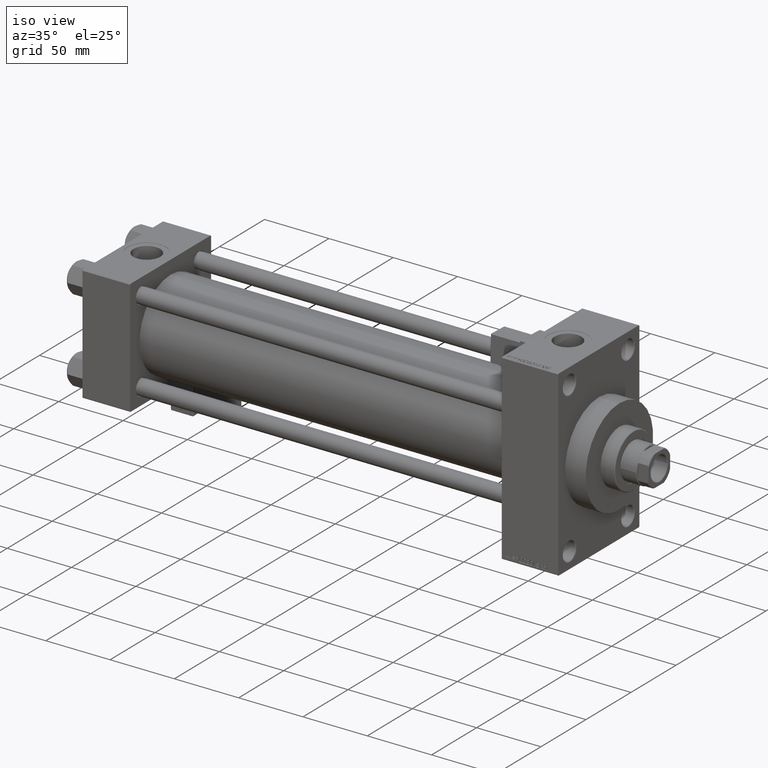
[diagram: clean part render]
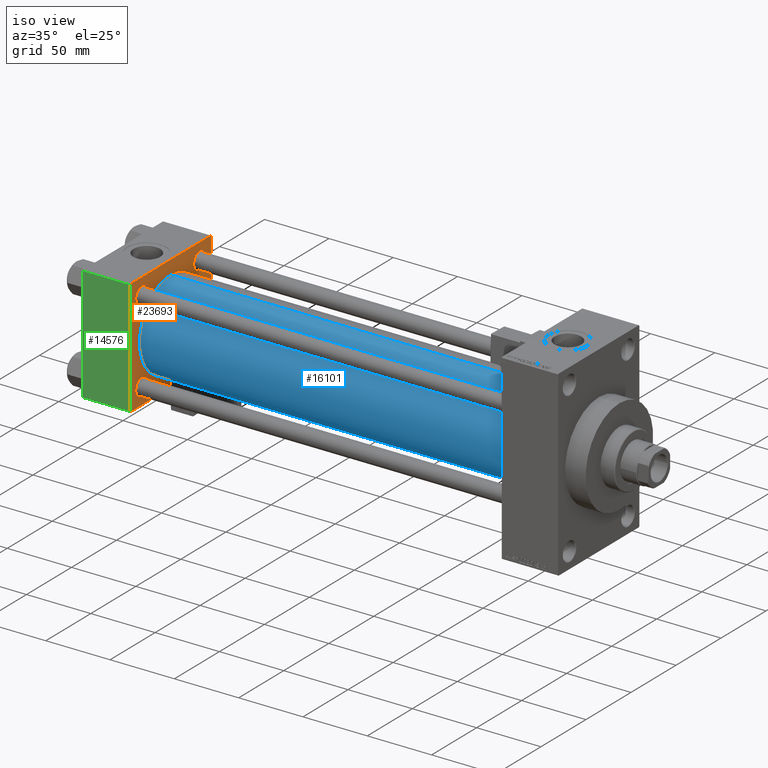
[diagram: same view with three faces highlighted in distinct colors, each labeled with its STEP entity id]
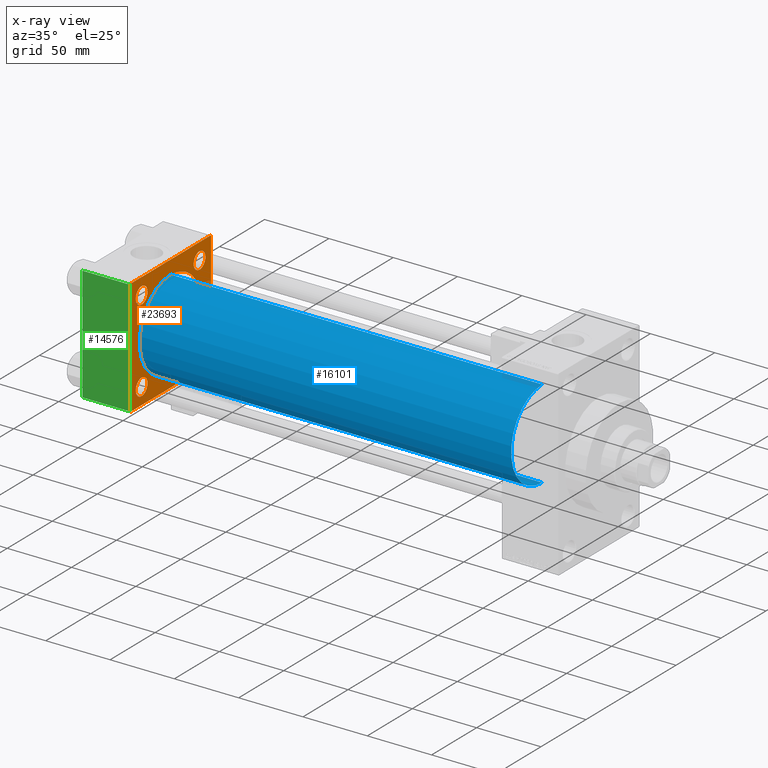
[diagram: x-ray of the same camera — body ghosted, the three highlighted faces saturated]
A machine part, iso view with three faces highlighted in distinct colors.
The next image is the same camera in x-ray (body ghosted, the three faces saturated) — at least one of them is partly hidden behind the body in this view.
Their STEP definitions:

[orange] entity #23693 — the highlighted planar face has unit normal (-1, 0, 0).
#691 = EDGE_LOOP ( 'NONE', ( #4268, #13103 ) ) ;
#812 = CIRCLE ( 'NONE', #22469, 34.50000000000000000 ) ;
#846 = LINE ( 'NONE', #21151, #26527 ) ;
#1030 = DIRECTION ( 'NONE',  ( 0.000000000000000000, 0.000000000000000000, 1.000000000000000000 ) ) ;
#1168 = VECTOR ( 'NONE', #44832, 1000.000000000000000 ) ;
#1524 = AXIS2_PLACEMENT_3D ( 'NONE', #42850, #35051, #35309 ) ;
#1540 = CARTESIAN_POINT ( 'NONE',  ( 37.00000000000000000, 32.14999999999999147, 32.15000000000000568 ) ) ;
#1883 = VECTOR ( 'NONE', #48368, 1000.000000000000114 ) ;
#1998 = CARTESIAN_POINT ( 'NONE',  ( 37.00000000000000000, -45.00000000000000000, -44.49999999999995737 ) ) ;
#2094 = EDGE_CURVE ( 'NONE', #29455, #16679, #18464, .T. ) ;
#2557 = VERTEX_POINT ( 'NONE', #48748 ) ;
#2651 = LINE ( 'NONE', #7817, #46558 ) ;
#2717 = EDGE_LOOP ( 'NONE', ( #36933, #48188 ) ) ;
#2844 = EDGE_CURVE ( 'NONE', #12648, #15254, #29971, .T. ) ;
#3176 = CARTESIAN_POINT ( 'NONE',  ( 37.00000000000000000, 32.14999999999999147, 32.15000000000000568 ) ) ;
#3290 = PLANE ( 'NONE',  #1524 ) ;
#3296 = CIRCLE ( 'NONE', #44007, 6.500000000000005329 ) ;
#3374 = AXIS2_PLACEMENT_3D ( 'NONE', #44755, #13513, #1030 ) ;
#3583 = CARTESIAN_POINT ( 'NONE',  ( 37.00000000000000000, -32.14999999999997726, 25.65000000000000568 ) ) ;
#3617 = DIRECTION ( 'NONE',  ( 0.000000000000000000, 0.000000000000000000, 1.000000000000000000 ) ) ;
#3638 = CIRCLE ( 'NONE', #31922, 6.500000000000005329 ) ;
#3794 = CARTESIAN_POINT ( 'NONE',  ( 37.00000000000000000, 44.99999999999998579, -44.49999999999995737 ) ) ;
#3873 = DIRECTION ( 'NONE',  ( -0.000000000000000000, 0.7071067811865474617, 0.7071067811865474617 ) ) ;
#4268 = ORIENTED_EDGE ( 'NONE', *, *, #6005, .T. ) ;
#4401 = CIRCLE ( 'NONE', #13546, 6.499999999999950262 ) ;
#4532 = ORIENTED_EDGE ( 'NONE', *, *, #45656, .T. ) ;
#5017 = CARTESIAN_POINT ( 'NONE',  ( 36.99999999999997868, -2.602085213965210642E-15, 34.50000000000000000 ) ) ;
#6005 = EDGE_CURVE ( 'NONE', #28952, #48900, #6065, .T. ) ;
#6065 = CIRCLE ( 'NONE', #10239, 6.499999999999950262 ) ;
#6245 = CARTESIAN_POINT ( 'NONE',  ( 37.00000000000000000, -32.14999999999997726, 38.65000000000001990 ) ) ;
#6640 = ORIENTED_EDGE ( 'NONE', *, *, #30576, .F. ) ;
#6748 = DIRECTION ( 'NONE',  ( -1.000000000000000000, 0.000000000000000000, -0.000000000000000000 ) ) ;
#6925 = FACE_BOUND ( 'NONE', #2717, .T. ) ;
#6950 = CARTESIAN_POINT ( 'NONE',  ( 37.00000000000000000, 44.99999999999998579, 45.00000000000001421 ) ) ;
#7094 = CIRCLE ( 'NONE', #48644, 6.499999999999950262 ) ;
#7185 = FACE_OUTER_BOUND ( 'NONE', #23867, .T. ) ;
#7440 = CIRCLE ( 'NONE', #36532, 6.499999999999950262 ) ;
#7817 = CARTESIAN_POINT ( 'NONE',  ( 37.00000000000000000, 44.99999999999998579, -44.99999999999998579 ) ) ;
#9275 = VERTEX_POINT ( 'NONE', #9481 ) ;
#9481 = CARTESIAN_POINT ( 'NONE',  ( 37.00000000000000000, -32.14999999999997726, -25.65000000000000568 ) ) ;
#9625 = CARTESIAN_POINT ( 'NONE',  ( 37.00000000000000000, 32.14999999999999147, 38.64999999999995595 ) ) ;
#9784 = CARTESIAN_POINT ( 'NONE',  ( 37.00000000000000000, 44.49999999999998579, 45.00000000000001421 ) ) ;
#9872 = CARTESIAN_POINT ( 'NONE',  ( 37.00000000000000000, -32.14999999999997726, -32.15000000000001279 ) ) ;
#10239 = AXIS2_PLACEMENT_3D ( 'NONE', #37472, #17710, #33577 ) ;
#10445 = EDGE_CURVE ( 'NONE', #30135, #44088, #25592, .T. ) ;
#10695 = EDGE_LOOP ( 'NONE', ( #38994, #6640 ) ) ;
#10818 = VERTEX_POINT ( 'NONE', #9625 ) ;
#11039 = DIRECTION ( 'NONE',  ( 1.000000000000000000, -0.000000000000000000, 0.000000000000000000 ) ) ;
#11937 = CARTESIAN_POINT ( 'NONE',  ( 37.00000000000000000, 44.99999999999998579, -44.49999999999998579 ) ) ;
#12648 = VERTEX_POINT ( 'NONE', #3583 ) ;
#12736 = CARTESIAN_POINT ( 'NONE',  ( 37.00000000000000000, -32.14999999999997726, -38.65000000000001990 ) ) ;
#13103 = ORIENTED_EDGE ( 'NONE', *, *, #30703, .T. ) ;
#13155 = ORIENTED_EDGE ( 'NONE', *, *, #48146, .T. ) ;
#13260 = CIRCLE ( 'NONE', #37337, 34.50000000000000000 ) ;
#13410 = ORIENTED_EDGE ( 'NONE', *, *, #35241, .F. ) ;
#13513 = DIRECTION ( 'NONE',  ( -1.000000000000000000, 0.000000000000000000, -0.000000000000000000 ) ) ;
#13546 = AXIS2_PLACEMENT_3D ( 'NONE', #1540, #17953, #29156 ) ;
#13621 = VERTEX_POINT ( 'NONE', #40783 ) ;
#14095 = CARTESIAN_POINT ( 'NONE',  ( 37.00000000000000000, -44.49999999999995737, -45.00000000000000000 ) ) ;
#14751 = DIRECTION ( 'NONE',  ( 0.000000000000000000, -0.7071067811865474617, 0.7071067811865474617 ) ) ;
#14794 = VERTEX_POINT ( 'NONE', #3794 ) ;
#14880 = VECTOR ( 'NONE', #3873, 1000.000000000000114 ) ;
#15219 = VECTOR ( 'NONE', #14751, 1000.000000000000114 ) ;
#15254 = VERTEX_POINT ( 'NONE', #6245 ) ;
#16627 = CARTESIAN_POINT ( 'NONE',  ( 37.00000000000000000, -45.00000000000000711, 44.49999999999997158 ) ) ;
#16679 = VERTEX_POINT ( 'NONE', #14095 ) ;
#17340 = ORIENTED_EDGE ( 'NONE', *, *, #41348, .T. ) ;
#17710 = DIRECTION ( 'NONE',  ( -1.000000000000000000, 0.000000000000000000, -0.000000000000000000 ) ) ;
#17948 = DIRECTION ( 'NONE',  ( 0.000000000000000000, 0.7071067811865474617, -0.7071067811865474617 ) ) ;
#17953 = DIRECTION ( 'NONE',  ( -1.000000000000000000, 0.000000000000000000, -0.000000000000000000 ) ) ;
#18464 = LINE ( 'NONE', #21842, #24098 ) ;
#18478 = CARTESIAN_POINT ( 'NONE',  ( 37.00000000000000000, -32.14999999999997726, 32.15000000000001279 ) ) ;
#19068 = DIRECTION ( 'NONE',  ( -1.000000000000000000, 0.000000000000000000, -0.000000000000000000 ) ) ;
#20404 = CIRCLE ( 'NONE', #32032, 6.500000000000005329 ) ;
#20527 = EDGE_LOOP ( 'NONE', ( #35358, #4532 ) ) ;
#20722 = DIRECTION ( 'NONE',  ( 0.000000000000000000, 0.000000000000000000, 1.000000000000000000 ) ) ;
#21151 = CARTESIAN_POINT ( 'NONE',  ( 37.00000000000000000, -45.00000000000000711, 45.00000000000000000 ) ) ;
#21681 = CARTESIAN_POINT ( 'NONE',  ( 37.00000000000000000, 44.99999999999998579, 45.00000000000001421 ) ) ;
#21842 = CARTESIAN_POINT ( 'NONE',  ( 37.00000000000000000, -44.49999999999998579, -45.00000000000000000 ) ) ;
#22334 = VERTEX_POINT ( 'NONE', #12736 ) ;
#22469 = AXIS2_PLACEMENT_3D ( 'NONE', #41447, #45866, #26114 ) ;
#22831 = FACE_BOUND ( 'NONE', #10695, .T. ) ;
#23693 = ADVANCED_FACE ( 'NONE', ( #6925, #39200, #50674, #50928, #22831, #7185 ), #3290, .F. ) ;
#23867 = EDGE_LOOP ( 'NONE', ( #13410, #35754, #45893, #39170, #32542, #17340, #29911, #41344 ) ) ;
#24098 = VECTOR ( 'NONE', #17948, 1000.000000000000114 ) ;
#24205 = EDGE_CURVE ( 'NONE', #2557, #29455, #846, .T. ) ;
#25008 = DIRECTION ( 'NONE',  ( 0.000000000000000000, 0.000000000000000000, 1.000000000000000000 ) ) ;
#25592 = LINE ( 'NONE', #21681, #1168 ) ;
#25876 = EDGE_CURVE ( 'NONE', #9275, #22334, #3296, .T. ) ;
#26114 = DIRECTION ( 'NONE',  ( 0.000000000000000000, 0.000000000000000000, 1.000000000000000000 ) ) ;
#26527 = VECTOR ( 'NONE', #37521, 1000.000000000000000 ) ;
#26954 = DIRECTION ( 'NONE',  ( 0.000000000000000000, 0.000000000000000000, 1.000000000000000000 ) ) ;
#27022 = LINE ( 'NONE', #6950, #50054 ) ;
#28099 = LINE ( 'NONE', #11937, #14880 ) ;
#28535 = CARTESIAN_POINT ( 'NONE',  ( 37.00000000000000000, -32.14999999999997726, -32.15000000000001279 ) ) ;
#28952 = VERTEX_POINT ( 'NONE', #44430 ) ;
#29156 = DIRECTION ( 'NONE',  ( 0.000000000000000000, 0.000000000000000000, 1.000000000000000000 ) ) ;
#29455 = VERTEX_POINT ( 'NONE', #1998 ) ;
#29911 = ORIENTED_EDGE ( 'NONE', *, *, #24205, .T. ) ;
#29971 = CIRCLE ( 'NONE', #3374, 6.500000000000005329 ) ;
#30131 = DIRECTION ( 'NONE',  ( 0.000000000000000000, 0.000000000000000000, -1.000000000000000000 ) ) ;
#30135 = VERTEX_POINT ( 'NONE', #33500 ) ;
#30576 = EDGE_CURVE ( 'NONE', #42356, #30697, #13260, .T. ) ;
#30697 = VERTEX_POINT ( 'NONE', #5017 ) ;
#30703 = EDGE_CURVE ( 'NONE', #48900, #28952, #7440, .T. ) ;
#31474 = EDGE_CURVE ( 'NONE', #30697, #42356, #812, .T. ) ;
#31922 = AXIS2_PLACEMENT_3D ( 'NONE', #18478, #6748, #3617 ) ;
#31991 = EDGE_CURVE ( 'NONE', #13621, #14794, #28099, .T. ) ;
#32032 = AXIS2_PLACEMENT_3D ( 'NONE', #9872, #37729, #25008 ) ;
#32348 = CARTESIAN_POINT ( 'NONE',  ( 37.00000000000000000, 32.14999999999999147, 25.65000000000005542 ) ) ;
#32542 = ORIENTED_EDGE ( 'NONE', *, *, #10445, .T. ) ;
#33381 = CARTESIAN_POINT ( 'NONE',  ( 37.00000000000000000, 32.14999999999999147, -32.15000000000000568 ) ) ;
#33483 = LINE ( 'NONE', #9784, #15219 ) ;
#33500 = CARTESIAN_POINT ( 'NONE',  ( 37.00000000000000000, 44.49999999999998579, 45.00000000000001421 ) ) ;
#33577 = DIRECTION ( 'NONE',  ( 0.000000000000000000, 0.000000000000000000, 1.000000000000000000 ) ) ;
#33915 = CARTESIAN_POINT ( 'NONE',  ( 37.00000000000000000, 32.14999999999999147, -25.65000000000005542 ) ) ;
#35051 = DIRECTION ( 'NONE',  ( -1.000000000000000000, 0.000000000000000000, -0.000000000000000000 ) ) ;
#35241 = EDGE_CURVE ( 'NONE', #13621, #16679, #2651, .T. ) ;
#35309 = DIRECTION ( 'NONE',  ( -0.000000000000000000, 0.000000000000000000, 1.000000000000000000 ) ) ;
#35358 = ORIENTED_EDGE ( 'NONE', *, *, #2844, .T. ) ;
#35754 = ORIENTED_EDGE ( 'NONE', *, *, #31991, .T. ) ;
#36392 = LINE ( 'NONE', #16627, #1883 ) ;
#36532 = AXIS2_PLACEMENT_3D ( 'NONE', #33381, #37030, #49261 ) ;
#36933 = ORIENTED_EDGE ( 'NONE', *, *, #48339, .T. ) ;
#37030 = DIRECTION ( 'NONE',  ( -1.000000000000000000, 0.000000000000000000, -0.000000000000000000 ) ) ;
#37337 = AXIS2_PLACEMENT_3D ( 'NONE', #50629, #11039, #26954 ) ;
#37472 = CARTESIAN_POINT ( 'NONE',  ( 37.00000000000000000, 32.14999999999999147, -32.15000000000000568 ) ) ;
#37521 = DIRECTION ( 'NONE',  ( 0.000000000000000000, 7.709882115452476934E-17, -1.000000000000000000 ) ) ;
#37729 = DIRECTION ( 'NONE',  ( -1.000000000000000000, 0.000000000000000000, -0.000000000000000000 ) ) ;
#37928 = CARTESIAN_POINT ( 'NONE',  ( 36.99999999999997868, 1.622946243093158675E-15, -34.50000000000000000 ) ) ;
#38867 = EDGE_CURVE ( 'NONE', #47985, #14794, #27022, .T. ) ;
#38994 = ORIENTED_EDGE ( 'NONE', *, *, #31474, .F. ) ;
#39170 = ORIENTED_EDGE ( 'NONE', *, *, #43927, .T. ) ;
#39200 = FACE_BOUND ( 'NONE', #691, .T. ) ;
#39325 = DIRECTION ( 'NONE',  ( 0.000000000000000000, -1.000000000000000000, -1.541976423090495633E-16 ) ) ;
#40492 = DIRECTION ( 'NONE',  ( -1.000000000000000000, 0.000000000000000000, -0.000000000000000000 ) ) ;
#40516 = EDGE_LOOP ( 'NONE', ( #46034, #13155 ) ) ;
#40783 = CARTESIAN_POINT ( 'NONE',  ( 37.00000000000000000, 44.49999999999998579, -44.99999999999998579 ) ) ;
#41344 = ORIENTED_EDGE ( 'NONE', *, *, #2094, .T. ) ;
#41348 = EDGE_CURVE ( 'NONE', #44088, #2557, #36392, .T. ) ;
#41447 = CARTESIAN_POINT ( 'NONE',  ( 36.99999999999997868, -2.602085213965210642E-15, 0.000000000000000000 ) ) ;
#42356 = VERTEX_POINT ( 'NONE', #37928 ) ;
#42850 = CARTESIAN_POINT ( 'NONE',  ( 37.00000000000000000, 0.000000000000000000, 0.000000000000000000 ) ) ;
#43522 = VERTEX_POINT ( 'NONE', #32348 ) ;
#43927 = EDGE_CURVE ( 'NONE', #47985, #30135, #33483, .T. ) ;
#44007 = AXIS2_PLACEMENT_3D ( 'NONE', #28535, #40492, #20722 ) ;
#44069 = CARTESIAN_POINT ( 'NONE',  ( 37.00000000000000000, 44.99999999999998579, 44.50000000000001421 ) ) ;
#44088 = VERTEX_POINT ( 'NONE', #48288 ) ;
#44430 = CARTESIAN_POINT ( 'NONE',  ( 37.00000000000000000, 32.14999999999999147, -38.64999999999995595 ) ) ;
#44616 = EDGE_CURVE ( 'NONE', #43522, #10818, #4401, .T. ) ;
#44755 = CARTESIAN_POINT ( 'NONE',  ( 37.00000000000000000, -32.14999999999997726, 32.15000000000001279 ) ) ;
#44832 = DIRECTION ( 'NONE',  ( 0.000000000000000000, -1.000000000000000000, -1.541976423090495387E-16 ) ) ;
#45656 = EDGE_CURVE ( 'NONE', #15254, #12648, #3638, .T. ) ;
#45866 = DIRECTION ( 'NONE',  ( 1.000000000000000000, -0.000000000000000000, 0.000000000000000000 ) ) ;
#45893 = ORIENTED_EDGE ( 'NONE', *, *, #38867, .F. ) ;
#46034 = ORIENTED_EDGE ( 'NONE', *, *, #44616, .T. ) ;
#46114 = DIRECTION ( 'NONE',  ( 0.000000000000000000, 0.000000000000000000, 1.000000000000000000 ) ) ;
#46558 = VECTOR ( 'NONE', #39325, 1000.000000000000000 ) ;
#47985 = VERTEX_POINT ( 'NONE', #44069 ) ;
#48146 = EDGE_CURVE ( 'NONE', #10818, #43522, #7094, .T. ) ;
#48188 = ORIENTED_EDGE ( 'NONE', *, *, #25876, .T. ) ;
#48288 = CARTESIAN_POINT ( 'NONE',  ( 37.00000000000000000, -44.49999999999995737, 45.00000000000000000 ) ) ;
#48339 = EDGE_CURVE ( 'NONE', #22334, #9275, #20404, .T. ) ;
#48368 = DIRECTION ( 'NONE',  ( -0.000000000000000000, -0.7071067811865425767, -0.7071067811865524577 ) ) ;
#48644 = AXIS2_PLACEMENT_3D ( 'NONE', #3176, #19068, #46114 ) ;
#48748 = CARTESIAN_POINT ( 'NONE',  ( 37.00000000000000000, -45.00000000000000711, 44.49999999999997158 ) ) ;
#48900 = VERTEX_POINT ( 'NONE', #33915 ) ;
#49261 = DIRECTION ( 'NONE',  ( 0.000000000000000000, 0.000000000000000000, 1.000000000000000000 ) ) ;
#50054 = VECTOR ( 'NONE', #30131, 1000.000000000000000 ) ;
#50629 = CARTESIAN_POINT ( 'NONE',  ( 36.99999999999997868, -2.602085213965210642E-15, 0.000000000000000000 ) ) ;
#50674 = FACE_BOUND ( 'NONE', #20527, .T. ) ;
#50928 = FACE_BOUND ( 'NONE', #40516, .T. ) ;

[blue] entity #16101 — the highlighted cylindrical surface (partial cylindrical patch) has radius 34.5 mm, axis along (-1, -0, -0).
#725 = ORIENTED_EDGE ( 'NONE', *, *, #31474, .T. ) ;
#812 = CIRCLE ( 'NONE', #22469, 34.50000000000000000 ) ;
#868 = CARTESIAN_POINT ( 'NONE',  ( 325.9999999999999432, -2.602085213965210642E-15, 0.000000000000000000 ) ) ;
#2464 = CARTESIAN_POINT ( 'NONE',  ( 325.9999999999999432, 1.622946243093158675E-15, -34.50000000000000000 ) ) ;
#5017 = CARTESIAN_POINT ( 'NONE',  ( 36.99999999999997868, -2.602085213965210642E-15, 34.50000000000000000 ) ) ;
#7507 = CARTESIAN_POINT ( 'NONE',  ( 325.9999999999999432, -2.602085213965210642E-15, 34.50000000000000000 ) ) ;
#9483 = LINE ( 'NONE', #2464, #28199 ) ;
#9878 = VERTEX_POINT ( 'NONE', #42081 ) ;
#11180 = ORIENTED_EDGE ( 'NONE', *, *, #19205, .T. ) ;
#11253 = EDGE_CURVE ( 'NONE', #9878, #49406, #15359, .T. ) ;
#12911 = EDGE_LOOP ( 'NONE', ( #44151, #19085, #11180, #725 ) ) ;
#15359 = CIRCLE ( 'NONE', #17838, 34.50000000000000000 ) ;
#16101 = ADVANCED_FACE ( 'NONE', ( #50792 ), #31013, .T. ) ;
#16508 = DIRECTION ( 'NONE',  ( 0.000000000000000000, 0.000000000000000000, -1.000000000000000000 ) ) ;
#17838 = AXIS2_PLACEMENT_3D ( 'NONE', #868, #19210, #16508 ) ;
#19085 = ORIENTED_EDGE ( 'NONE', *, *, #11253, .F. ) ;
#19205 = EDGE_CURVE ( 'NONE', #9878, #30697, #31476, .T. ) ;
#19210 = DIRECTION ( 'NONE',  ( 1.000000000000000000, 0.000000000000000000, 0.000000000000000000 ) ) ;
#22469 = AXIS2_PLACEMENT_3D ( 'NONE', #41447, #45866, #26114 ) ;
#23195 = DIRECTION ( 'NONE',  ( 0.000000000000000000, 0.000000000000000000, 1.000000000000000000 ) ) ;
#23401 = DIRECTION ( 'NONE',  ( -1.000000000000000000, -0.000000000000000000, -0.000000000000000000 ) ) ;
#24828 = EDGE_CURVE ( 'NONE', #49406, #42356, #9483, .T. ) ;
#25387 = DIRECTION ( 'NONE',  ( -1.000000000000000000, -0.000000000000000000, -0.000000000000000000 ) ) ;
#25635 = VECTOR ( 'NONE', #23401, 1000.000000000000000 ) ;
#26114 = DIRECTION ( 'NONE',  ( 0.000000000000000000, 0.000000000000000000, 1.000000000000000000 ) ) ;
#27116 = CARTESIAN_POINT ( 'NONE',  ( 325.9999999999999432, -2.602085213965210642E-15, 0.000000000000000000 ) ) ;
#28199 = VECTOR ( 'NONE', #25387, 1000.000000000000000 ) ;
#30697 = VERTEX_POINT ( 'NONE', #5017 ) ;
#31013 = CYLINDRICAL_SURFACE ( 'NONE', #35448, 34.50000000000000000 ) ;
#31474 = EDGE_CURVE ( 'NONE', #30697, #42356, #812, .T. ) ;
#31476 = LINE ( 'NONE', #7507, #25635 ) ;
#35448 = AXIS2_PLACEMENT_3D ( 'NONE', #27116, #42962, #23195 ) ;
#37928 = CARTESIAN_POINT ( 'NONE',  ( 36.99999999999997868, 1.622946243093158675E-15, -34.50000000000000000 ) ) ;
#41447 = CARTESIAN_POINT ( 'NONE',  ( 36.99999999999997868, -2.602085213965210642E-15, 0.000000000000000000 ) ) ;
#42081 = CARTESIAN_POINT ( 'NONE',  ( 325.9999999999999432, -2.602085213965210642E-15, 34.50000000000000000 ) ) ;
#42356 = VERTEX_POINT ( 'NONE', #37928 ) ;
#42824 = CARTESIAN_POINT ( 'NONE',  ( 325.9999999999999432, 1.622946243093158675E-15, -34.50000000000000000 ) ) ;
#42962 = DIRECTION ( 'NONE',  ( -1.000000000000000000, -0.000000000000000000, -0.000000000000000000 ) ) ;
#44151 = ORIENTED_EDGE ( 'NONE', *, *, #24828, .F. ) ;
#45866 = DIRECTION ( 'NONE',  ( 1.000000000000000000, -0.000000000000000000, 0.000000000000000000 ) ) ;
#49406 = VERTEX_POINT ( 'NONE', #42824 ) ;
#50792 = FACE_OUTER_BOUND ( 'NONE', #12911, .T. ) ;

[green] entity #14576 — the highlighted planar face has unit normal (0, 1, 0).
#846 = LINE ( 'NONE', #21151, #26527 ) ;
#1475 = CARTESIAN_POINT ( 'NONE',  ( 37.00000000000000000, -45.00000000000000711, 45.00000000000000000 ) ) ;
#1998 = CARTESIAN_POINT ( 'NONE',  ( 37.00000000000000000, -45.00000000000000000, -44.49999999999995737 ) ) ;
#2557 = VERTEX_POINT ( 'NONE', #48748 ) ;
#6313 = LINE ( 'NONE', #19344, #47880 ) ;
#9009 = VERTEX_POINT ( 'NONE', #34132 ) ;
#12427 = FACE_OUTER_BOUND ( 'NONE', #42440, .T. ) ;
#13483 = CARTESIAN_POINT ( 'NONE',  ( 0.000000000000000000, -45.00000000000000711, 44.49999999999997158 ) ) ;
#14326 = DIRECTION ( 'NONE',  ( 0.000000000000000000, 7.709882115452476934E-17, -1.000000000000000000 ) ) ;
#14576 = ADVANCED_FACE ( 'NONE', ( #12427 ), #49118, .F. ) ;
#14981 = EDGE_CURVE ( 'NONE', #9009, #29455, #6313, .T. ) ;
#15617 = EDGE_CURVE ( 'NONE', #2557, #50512, #16794, .T. ) ;
#16794 = LINE ( 'NONE', #28250, #34631 ) ;
#17092 = VECTOR ( 'NONE', #14326, 1000.000000000000000 ) ;
#18118 = ORIENTED_EDGE ( 'NONE', *, *, #15617, .T. ) ;
#19344 = CARTESIAN_POINT ( 'NONE',  ( 37.00000000000000000, -45.00000000000000000, -44.49999999999998579 ) ) ;
#19783 = ORIENTED_EDGE ( 'NONE', *, *, #24205, .F. ) ;
#21151 = CARTESIAN_POINT ( 'NONE',  ( 37.00000000000000000, -45.00000000000000711, 45.00000000000000000 ) ) ;
#24205 = EDGE_CURVE ( 'NONE', #2557, #29455, #846, .T. ) ;
#25178 = DIRECTION ( 'NONE',  ( -0.000000000000000000, 1.000000000000000000, 7.709882115452478166E-17 ) ) ;
#25438 = DIRECTION ( 'NONE',  ( 0.000000000000000000, -7.709882115452478166E-17, 1.000000000000000000 ) ) ;
#26527 = VECTOR ( 'NONE', #37521, 1000.000000000000000 ) ;
#27104 = AXIS2_PLACEMENT_3D ( 'NONE', #1475, #25178, #25438 ) ;
#28250 = CARTESIAN_POINT ( 'NONE',  ( 37.00000000000000000, -45.00000000000000711, 44.49999999999997158 ) ) ;
#29455 = VERTEX_POINT ( 'NONE', #1998 ) ;
#30987 = ORIENTED_EDGE ( 'NONE', *, *, #14981, .T. ) ;
#34114 = CARTESIAN_POINT ( 'NONE',  ( 0.000000000000000000, -45.00000000000000711, 45.00000000000000000 ) ) ;
#34132 = CARTESIAN_POINT ( 'NONE',  ( 0.000000000000000000, -45.00000000000000000, -44.49999999999995737 ) ) ;
#34631 = VECTOR ( 'NONE', #44106, 1000.000000000000000 ) ;
#35219 = DIRECTION ( 'NONE',  ( 1.000000000000000000, 0.000000000000000000, 0.000000000000000000 ) ) ;
#37521 = DIRECTION ( 'NONE',  ( 0.000000000000000000, 7.709882115452476934E-17, -1.000000000000000000 ) ) ;
#42440 = EDGE_LOOP ( 'NONE', ( #50644, #30987, #19783, #18118 ) ) ;
#44106 = DIRECTION ( 'NONE',  ( -1.000000000000000000, 0.000000000000000000, 0.000000000000000000 ) ) ;
#47880 = VECTOR ( 'NONE', #35219, 1000.000000000000000 ) ;
#48748 = CARTESIAN_POINT ( 'NONE',  ( 37.00000000000000000, -45.00000000000000711, 44.49999999999997158 ) ) ;
#49118 = PLANE ( 'NONE',  #27104 ) ;
#49166 = EDGE_CURVE ( 'NONE', #50512, #9009, #50963, .T. ) ;
#50512 = VERTEX_POINT ( 'NONE', #13483 ) ;
#50644 = ORIENTED_EDGE ( 'NONE', *, *, #49166, .T. ) ;
#50963 = LINE ( 'NONE', #34114, #17092 ) ;